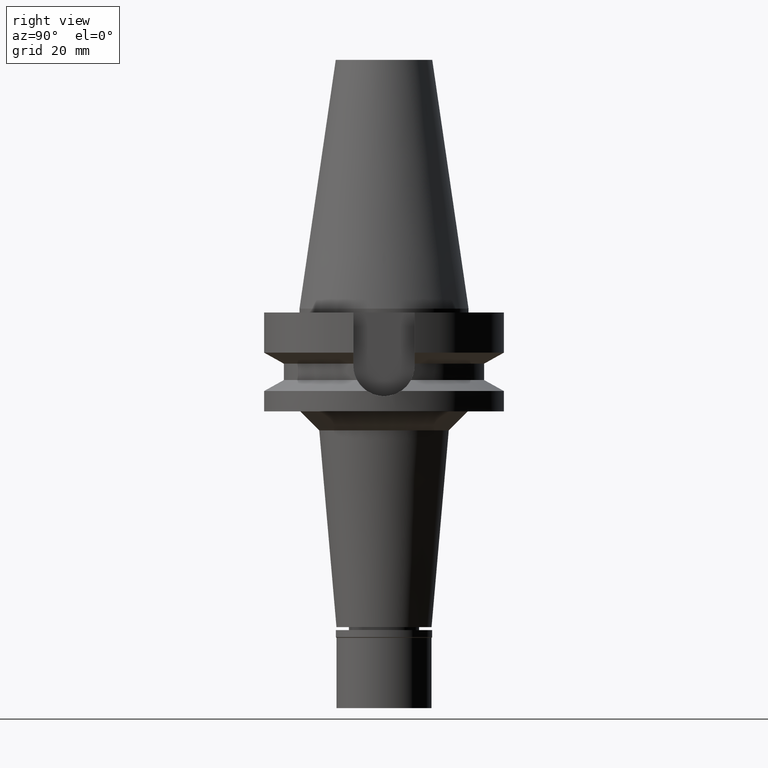
[diagram: clean part render]
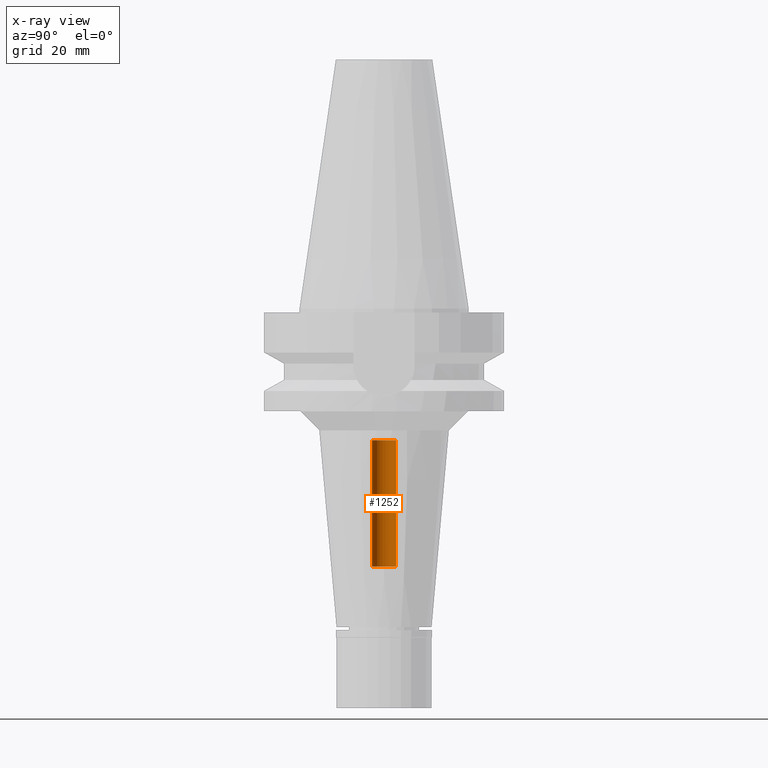
[diagram: x-ray — body ghosted, one internal face saturated and labeled with its STEP entity id]
A machine part, right view, then the same camera in x-ray: the body is ghosted and one INTERNAL B-rep face — a face not visible from any outside direction — is saturated and labeled: STEP entity #1252.
In plain terms, the highlighted cylindrical surface (edge-blend (fillet) strip) has radius 3.2 mm, axis along (0, 0, -1).
Its self-contained STEP definition (entity closure, byte-faithful):
#82 = ORIENTED_EDGE ( 'NONE', *, *, #3024, .T. ) ;
#175 = CARTESIAN_POINT ( 'NONE',  ( 0.0000000000000000000, 2.126109307999999799E-14, -67.79999999999999716 ) ) ;
#251 = EDGE_CURVE ( 'NONE', #2030, #1084, #883, .T. ) ;
#252 = LINE ( 'NONE', #3146, #1357 ) ;
#287 = DIRECTION ( 'NONE',  ( 0.0000000000000000000, 0.0000000000000000000, 1.000000000000000000 ) ) ;
#445 = VERTEX_POINT ( 'NONE', #2144 ) ;
#579 = CARTESIAN_POINT ( 'NONE',  ( 0.0000000000000000000, 3.200000000000000178, -67.79999999999999716 ) ) ;
#581 = AXIS2_PLACEMENT_3D ( 'NONE', #2035, #1747, #1527 ) ;
#634 = CIRCLE ( 'NONE', #1650, 3.200000000000000178 ) ;
#763 = VERTEX_POINT ( 'NONE', #2438 ) ;
#817 = LINE ( 'NONE', #2994, #1500 ) ;
#883 = CIRCLE ( 'NONE', #2468, 3.200000000000000178 ) ;
#897 = ORIENTED_EDGE ( 'NONE', *, *, #2085, .T. ) ;
#904 = DIRECTION ( 'NONE',  ( 0.0000000000000000000, -1.000000000000000000, 0.0000000000000000000 ) ) ;
#930 = EDGE_CURVE ( 'NONE', #2030, #445, #817, .T. ) ;
#1082 = FACE_OUTER_BOUND ( 'NONE', #2836, .T. ) ;
#1084 = VERTEX_POINT ( 'NONE', #579 ) ;
#1176 = DIRECTION ( 'NONE',  ( 0.0000000000000000000, 0.0000000000000000000, 1.000000000000000000 ) ) ;
#1199 = CARTESIAN_POINT ( 'NONE',  ( 0.0000000000000000000, 2.126109307999999799E-14, -34.60000000000000142 ) ) ;
#1252 = ADVANCED_FACE ( 'NONE', ( #1082 ), #2007, .F. ) ;
#1357 = VECTOR ( 'NONE', #1176, 1000.000000000000000 ) ;
#1500 = VECTOR ( 'NONE', #287, 1000.000000000000000 ) ;
#1527 = DIRECTION ( 'NONE',  ( 0.0000000000000000000, -1.000000000000000000, 0.0000000000000000000 ) ) ;
#1646 = DIRECTION ( 'NONE',  ( 0.0000000000000000000, 1.000000000000000000, 0.0000000000000000000 ) ) ;
#1650 = AXIS2_PLACEMENT_3D ( 'NONE', #1199, #2117, #1646 ) ;
#1747 = DIRECTION ( 'NONE',  ( 0.0000000000000000000, 0.0000000000000000000, -1.000000000000000000 ) ) ;
#2007 = CYLINDRICAL_SURFACE ( 'NONE', #581, 3.200000000000000178 ) ;
#2030 = VERTEX_POINT ( 'NONE', #2918 ) ;
#2035 = CARTESIAN_POINT ( 'NONE',  ( 0.0000000000000000000, 2.126109307999999799E-14, 73.60999999999999943 ) ) ;
#2085 = EDGE_CURVE ( 'NONE', #1084, #763, #252, .T. ) ;
#2117 = DIRECTION ( 'NONE',  ( 0.0000000000000000000, 0.0000000000000000000, 1.000000000000000000 ) ) ;
#2124 = ORIENTED_EDGE ( 'NONE', *, *, #251, .T. ) ;
#2144 = CARTESIAN_POINT ( 'NONE',  ( 0.0000000000000000000, -3.200000000000000178, -34.60000000000000142 ) ) ;
#2338 = ORIENTED_EDGE ( 'NONE', *, *, #930, .F. ) ;
#2341 = DIRECTION ( 'NONE',  ( 0.0000000000000000000, 0.0000000000000000000, -1.000000000000000000 ) ) ;
#2438 = CARTESIAN_POINT ( 'NONE',  ( 0.0000000000000000000, 3.200000000000000178, -34.60000000000000142 ) ) ;
#2468 = AXIS2_PLACEMENT_3D ( 'NONE', #175, #2341, #904 ) ;
#2836 = EDGE_LOOP ( 'NONE', ( #82, #2338, #2124, #897 ) ) ;
#2918 = CARTESIAN_POINT ( 'NONE',  ( 0.0000000000000000000, -3.200000000000000178, -67.79999999999999716 ) ) ;
#2994 = CARTESIAN_POINT ( 'NONE',  ( 0.0000000000000000000, -3.200000000000000178, -67.79999999999999716 ) ) ;
#3024 = EDGE_CURVE ( 'NONE', #763, #445, #634, .T. ) ;
#3146 = CARTESIAN_POINT ( 'NONE',  ( 0.0000000000000000000, 3.200000000000000178, -67.79999999999999716 ) ) ;